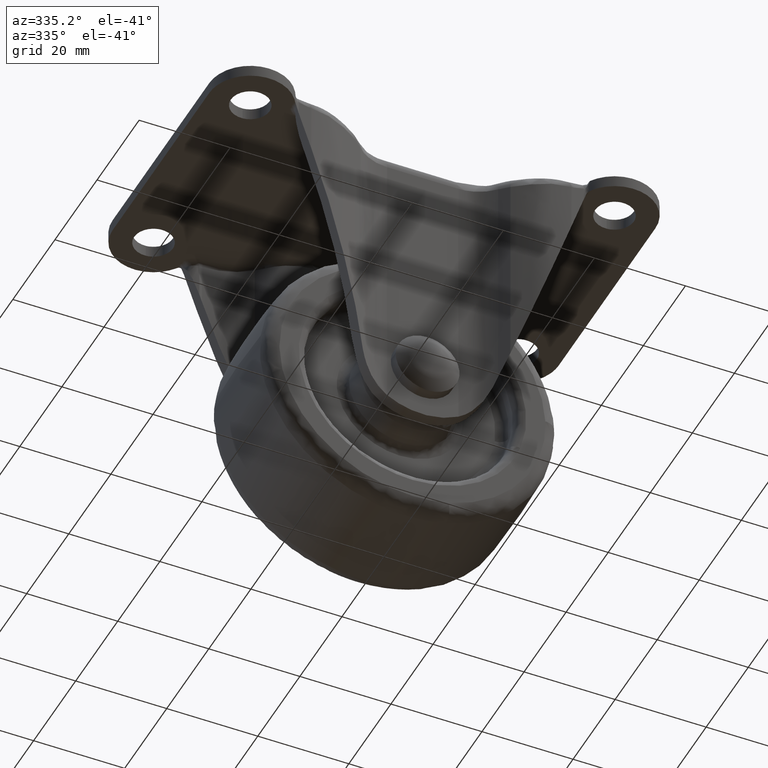
[diagram: clean part render]
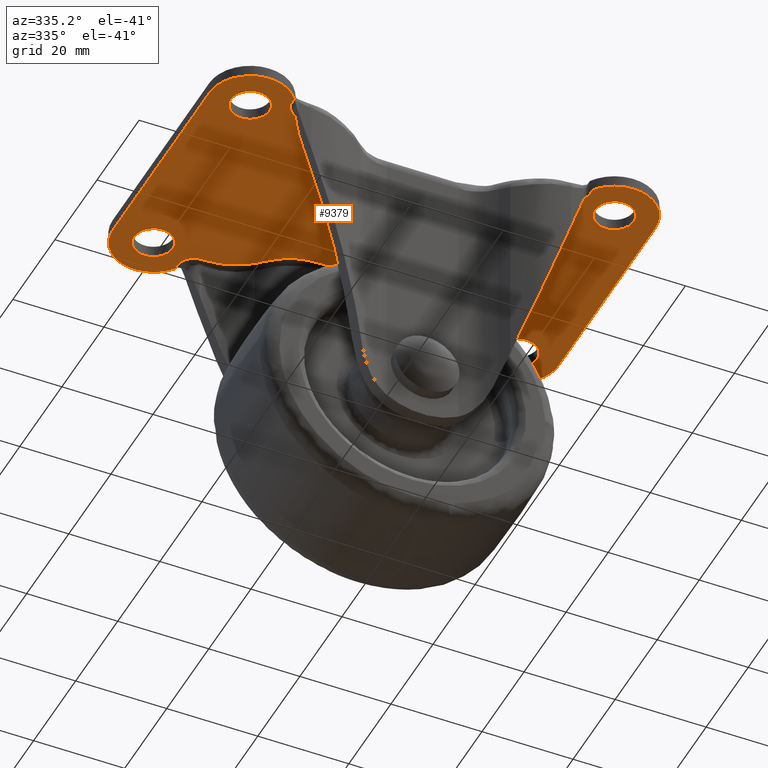
[diagram: same view with one face highlighted and labeled with its STEP entity id]
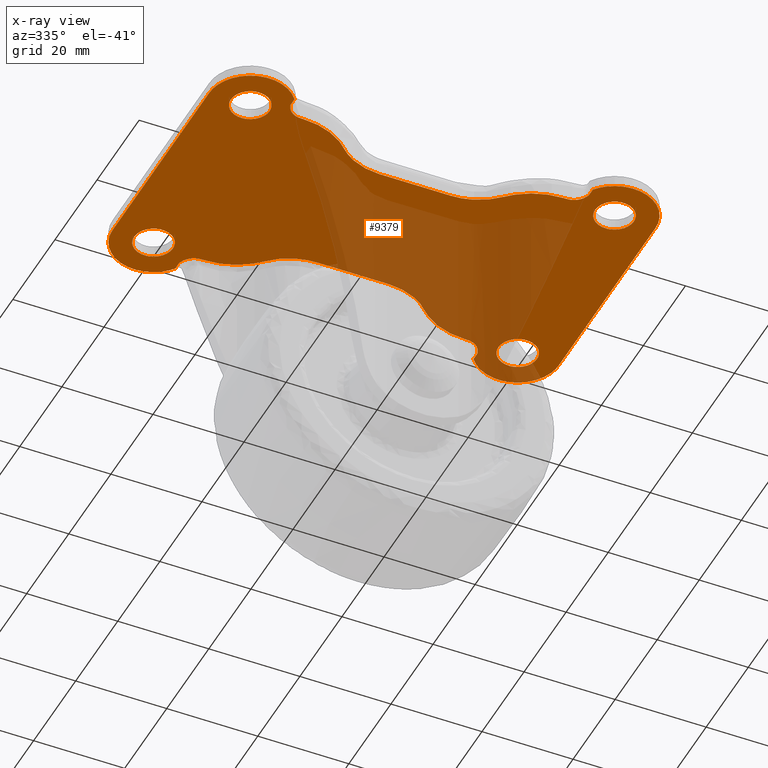
[diagram: x-ray of the same camera — body ghosted, the highlighted face saturated]
A machine part, auxiliary view. The second image highlights one B-rep face of the part: STEP entity #9379.
The next image is the same camera in x-ray: the body ghosted, the highlighted face saturated — about 36% of this face is hidden behind the body in this view.
In plain terms, the highlighted face is a freeform B-spline surface patch.
Its self-contained STEP definition (entity closure, byte-faithful):
#3981=CARTESIAN_POINT('',(-40.501665497512811,18.779709512980759,-2.599999999999935));
#3982=VERTEX_POINT('',#3981);
#3983=CARTESIAN_POINT('',(-35.750019999999992,23.0,-2.599999999999935));
#3984=VERTEX_POINT('',#3983);
#3985=CARTESIAN_POINT('',(-40.501665497512811,18.779709512980759,-2.599999999999935));
#3986=CARTESIAN_POINT('',(-40.251722508744550,18.750000000000004,-2.599999999999935));
#3987=CARTESIAN_POINT('',(-40.000019999999999,18.750000000000000,-2.599999999999935));
#3988=CARTESIAN_POINT('',(-35.750020000000006,18.750000000000004,-2.599999999999935));
#3989=CARTESIAN_POINT('',(-35.750019999999992,23.0,-2.599999999999935));
#3997=(BOUNDED_CURVE()B_SPLINE_CURVE(2,(#3985,#3986,#3987,#3988,#3989),.UNSPECIFIED.,.F.,.U.)B_SPLINE_CURVE_WITH_KNOTS((3,2,3),(0.229562473497897,0.250000000000000,0.500000000000000),.UNSPECIFIED.)CURVE()GEOMETRIC_REPRESENTATION_ITEM()RATIONAL_B_SPLINE_CURVE((0.956026754153100,0.976055948312855,1.0,0.707106781186548,1.0))REPRESENTATION_ITEM(''));
#3998=EDGE_CURVE('',#3982,#3984,#3997,.T.);
#4039=CARTESIAN_POINT('',(-39.740563706735223,27.242072893278159,-2.599999999999935));
#4040=VERTEX_POINT('',#4039);
#4046=CARTESIAN_POINT('',(-35.750019999999992,23.0,-2.599999999999935));
#4047=CARTESIAN_POINT('',(-35.750019999999985,26.998000783892902,-2.599999999999934));
#4048=CARTESIAN_POINT('',(-39.740563706735223,27.242072893278156,-2.599999999999935));
#4056=(BOUNDED_CURVE()B_SPLINE_CURVE(2,(#4046,#4047,#4048),.UNSPECIFIED.,.F.,.U.)B_SPLINE_CURVE_WITH_KNOTS((3,3),(0.500000000000000,0.739332962222312),.UNSPECIFIED.)CURVE()GEOMETRIC_REPRESENTATION_ITEM()RATIONAL_B_SPLINE_CURVE((1.0,0.719603993306195,0.976072041631074))REPRESENTATION_ITEM(''));
#4057=EDGE_CURVE('',#3984,#4040,#4056,.T.);
#4080=CARTESIAN_POINT('',(-44.250019999999999,23.0,-2.599999999999935));
#4081=VERTEX_POINT('',#4080);
#4082=CARTESIAN_POINT('',(-44.250019999999999,23.0,-2.599999999999935));
#4083=CARTESIAN_POINT('',(-44.250020000000013,19.225258265105865,-2.599999999999934));
#4084=CARTESIAN_POINT('',(-40.501665497512811,18.779709512980759,-2.599999999999935));
#4092=(BOUNDED_CURVE()B_SPLINE_CURVE(2,(#4082,#4083,#4084),.UNSPECIFIED.,.F.,.U.)B_SPLINE_CURVE_WITH_KNOTS((3,3),(0.0,0.229562473497897),.UNSPECIFIED.)CURVE()GEOMETRIC_REPRESENTATION_ITEM()RATIONAL_B_SPLINE_CURVE((1.0,0.731050832873692,0.956026754153100))REPRESENTATION_ITEM(''));
#4093=EDGE_CURVE('',#4081,#3982,#4092,.T.);
#4095=CARTESIAN_POINT('',(-39.740563706735216,27.242072893278159,-2.599999999999935));
#4096=CARTESIAN_POINT('',(-39.870170755738684,27.250000000000000,-2.599999999999935));
#4097=CARTESIAN_POINT('',(-40.000019999999999,27.250000000000000,-2.599999999999935));
#4098=CARTESIAN_POINT('',(-44.250020000000013,27.249999999999996,-2.599999999999935));
#4099=CARTESIAN_POINT('',(-44.250019999999999,23.0,-2.599999999999935));
#4107=(BOUNDED_CURVE()B_SPLINE_CURVE(2,(#4095,#4096,#4097,#4098,#4099),.UNSPECIFIED.,.F.,.U.)B_SPLINE_CURVE_WITH_KNOTS((3,2,3),(0.739332962222311,0.750000000000000,1.0),.UNSPECIFIED.)CURVE()GEOMETRIC_REPRESENTATION_ITEM()RATIONAL_B_SPLINE_CURVE((0.976072041631072,0.987502787880352,1.0,0.707106781186548,1.0))REPRESENTATION_ITEM(''));
#4108=EDGE_CURVE('',#4040,#4081,#4107,.T.);
#4167=CARTESIAN_POINT('',(-40.501665497512811,-27.220290487019241,-2.599999999999935));
#4168=VERTEX_POINT('',#4167);
#4169=CARTESIAN_POINT('',(-35.750019999999992,-23.0,-2.599999999999935));
#4170=VERTEX_POINT('',#4169);
#4171=CARTESIAN_POINT('',(-40.501665497512811,-27.220290487019241,-2.599999999999934));
#4172=CARTESIAN_POINT('',(-40.251722508744542,-27.250000000000004,-2.599999999999935));
#4173=CARTESIAN_POINT('',(-40.000019999999999,-27.250000000000000,-2.599999999999935));
#4174=CARTESIAN_POINT('',(-35.750020000000006,-27.249999999999996,-2.599999999999935));
#4175=CARTESIAN_POINT('',(-35.750019999999992,-23.0,-2.599999999999935));
#4183=(BOUNDED_CURVE()B_SPLINE_CURVE(2,(#4171,#4172,#4173,#4174,#4175),.UNSPECIFIED.,.F.,.U.)B_SPLINE_CURVE_WITH_KNOTS((3,2,3),(0.229562473497897,0.250000000000000,0.500000000000000),.UNSPECIFIED.)CURVE()GEOMETRIC_REPRESENTATION_ITEM()RATIONAL_B_SPLINE_CURVE((0.956026754153101,0.976055948312855,1.0,0.707106781186548,1.0))REPRESENTATION_ITEM(''));
#4184=EDGE_CURVE('',#4168,#4170,#4183,.T.);
#4225=CARTESIAN_POINT('',(-39.740563706735223,-18.757927106721841,-2.599999999999935));
#4226=VERTEX_POINT('',#4225);
#4232=CARTESIAN_POINT('',(-35.750019999999992,-23.0,-2.599999999999935));
#4233=CARTESIAN_POINT('',(-35.750019999999985,-19.001999216107095,-2.599999999999934));
#4234=CARTESIAN_POINT('',(-39.740563706735223,-18.757927106721841,-2.599999999999935));
#4242=(BOUNDED_CURVE()B_SPLINE_CURVE(2,(#4232,#4233,#4234),.UNSPECIFIED.,.F.,.U.)B_SPLINE_CURVE_WITH_KNOTS((3,3),(0.500000000000000,0.739332962222312),.UNSPECIFIED.)CURVE()GEOMETRIC_REPRESENTATION_ITEM()RATIONAL_B_SPLINE_CURVE((1.0,0.719603993306195,0.976072041631074))REPRESENTATION_ITEM(''));
#4243=EDGE_CURVE('',#4170,#4226,#4242,.T.);
#4266=CARTESIAN_POINT('',(-44.250019999999999,-23.0,-2.599999999999935));
#4267=VERTEX_POINT('',#4266);
#4268=CARTESIAN_POINT('',(-44.250019999999999,-23.0,-2.599999999999935));
#4269=CARTESIAN_POINT('',(-44.250020000000013,-26.774741734894139,-2.599999999999934));
#4270=CARTESIAN_POINT('',(-40.501665497512811,-27.220290487019238,-2.599999999999935));
#4278=(BOUNDED_CURVE()B_SPLINE_CURVE(2,(#4268,#4269,#4270),.UNSPECIFIED.,.F.,.U.)B_SPLINE_CURVE_WITH_KNOTS((3,3),(0.0,0.229562473497897),.UNSPECIFIED.)CURVE()GEOMETRIC_REPRESENTATION_ITEM()RATIONAL_B_SPLINE_CURVE((1.0,0.731050832873692,0.956026754153100))REPRESENTATION_ITEM(''));
#4279=EDGE_CURVE('',#4267,#4168,#4278,.T.);
#4281=CARTESIAN_POINT('',(-39.740563706735216,-18.757927106721848,-2.599999999999935));
#4282=CARTESIAN_POINT('',(-39.870170755738684,-18.750000000000004,-2.599999999999935));
#4283=CARTESIAN_POINT('',(-40.000019999999999,-18.750000000000000,-2.599999999999935));
#4284=CARTESIAN_POINT('',(-44.250020000000013,-18.750000000000004,-2.599999999999935));
#4285=CARTESIAN_POINT('',(-44.250019999999999,-23.0,-2.599999999999935));
#4293=(BOUNDED_CURVE()B_SPLINE_CURVE(2,(#4281,#4282,#4283,#4284,#4285),.UNSPECIFIED.,.F.,.U.)B_SPLINE_CURVE_WITH_KNOTS((3,2,3),(0.739332962222311,0.750000000000000,1.0),.UNSPECIFIED.)CURVE()GEOMETRIC_REPRESENTATION_ITEM()RATIONAL_B_SPLINE_CURVE((0.976072041631072,0.987502787880352,1.0,0.707106781186548,1.0))REPRESENTATION_ITEM(''));
#4294=EDGE_CURVE('',#4226,#4267,#4293,.T.);
#4353=CARTESIAN_POINT('',(39.498334502487182,18.779709512980759,-2.599999999999935));
#4354=VERTEX_POINT('',#4353);
#4355=CARTESIAN_POINT('',(44.249979999999987,23.0,-2.599999999999935));
#4356=VERTEX_POINT('',#4355);
#4357=CARTESIAN_POINT('',(39.498334502487182,18.779709512980759,-2.599999999999935));
#4358=CARTESIAN_POINT('',(39.748277491255458,18.749999999999996,-2.599999999999935));
#4359=CARTESIAN_POINT('',(39.999980000000001,18.750000000000000,-2.599999999999935));
#4360=CARTESIAN_POINT('',(44.249979999999987,18.750000000000004,-2.599999999999935));
#4361=CARTESIAN_POINT('',(44.249979999999987,23.0,-2.599999999999935));
#4369=(BOUNDED_CURVE()B_SPLINE_CURVE(2,(#4357,#4358,#4359,#4360,#4361),.UNSPECIFIED.,.F.,.U.)B_SPLINE_CURVE_WITH_KNOTS((3,2,3),(0.229562473497897,0.250000000000000,0.500000000000000),.UNSPECIFIED.)CURVE()GEOMETRIC_REPRESENTATION_ITEM()RATIONAL_B_SPLINE_CURVE((0.956026754153100,0.976055948312855,1.0,0.707106781186548,1.0))REPRESENTATION_ITEM(''));
#4370=EDGE_CURVE('',#4354,#4356,#4369,.T.);
#4411=CARTESIAN_POINT('',(40.259436293264777,27.242072893278159,-2.599999999999935));
#4412=VERTEX_POINT('',#4411);
#4418=CARTESIAN_POINT('',(44.249979999999987,23.0,-2.599999999999935));
#4419=CARTESIAN_POINT('',(44.249979999999994,26.998000783892902,-2.599999999999934));
#4420=CARTESIAN_POINT('',(40.259436293264763,27.242072893278156,-2.599999999999935));
#4428=(BOUNDED_CURVE()B_SPLINE_CURVE(2,(#4418,#4419,#4420),.UNSPECIFIED.,.F.,.U.)B_SPLINE_CURVE_WITH_KNOTS((3,3),(0.500000000000000,0.739332962222312),.UNSPECIFIED.)CURVE()GEOMETRIC_REPRESENTATION_ITEM()RATIONAL_B_SPLINE_CURVE((1.0,0.719603993306195,0.976072041631074))REPRESENTATION_ITEM(''));
#4429=EDGE_CURVE('',#4356,#4412,#4428,.T.);
#4452=CARTESIAN_POINT('',(35.749980000000001,23.0,-2.599999999999935));
#4453=VERTEX_POINT('',#4452);
#4454=CARTESIAN_POINT('',(35.749980000000001,23.0,-2.599999999999935));
#4455=CARTESIAN_POINT('',(35.749980000000001,19.225258265105875,-2.599999999999935));
#4456=CARTESIAN_POINT('',(39.498334502487182,18.779709512980759,-2.599999999999935));
#4464=(BOUNDED_CURVE()B_SPLINE_CURVE(2,(#4454,#4455,#4456),.UNSPECIFIED.,.F.,.U.)B_SPLINE_CURVE_WITH_KNOTS((3,3),(0.0,0.229562473497897),.UNSPECIFIED.)CURVE()GEOMETRIC_REPRESENTATION_ITEM()RATIONAL_B_SPLINE_CURVE((1.0,0.731050832873693,0.956026754153100))REPRESENTATION_ITEM(''));
#4465=EDGE_CURVE('',#4453,#4354,#4464,.T.);
#4467=CARTESIAN_POINT('',(40.259436293264777,27.242072893278159,-2.599999999999935));
#4468=CARTESIAN_POINT('',(40.129829244261323,27.250000000000000,-2.599999999999935));
#4469=CARTESIAN_POINT('',(39.999980000000001,27.250000000000000,-2.599999999999935));
#4470=CARTESIAN_POINT('',(35.749979999999994,27.249999999999996,-2.599999999999935));
#4471=CARTESIAN_POINT('',(35.749980000000001,23.0,-2.599999999999935));
#4479=(BOUNDED_CURVE()B_SPLINE_CURVE(2,(#4467,#4468,#4469,#4470,#4471),.UNSPECIFIED.,.F.,.U.)B_SPLINE_CURVE_WITH_KNOTS((3,2,3),(0.739332962222311,0.750000000000000,1.0),.UNSPECIFIED.)CURVE()GEOMETRIC_REPRESENTATION_ITEM()RATIONAL_B_SPLINE_CURVE((0.976072041631072,0.987502787880352,1.0,0.707106781186548,1.0))REPRESENTATION_ITEM(''));
#4480=EDGE_CURVE('',#4412,#4453,#4479,.T.);
#4539=CARTESIAN_POINT('',(39.498334502487182,-27.220290487019241,-2.599999999999935));
#4540=VERTEX_POINT('',#4539);
#4541=CARTESIAN_POINT('',(44.249979999999987,-23.0,-2.599999999999935));
#4542=VERTEX_POINT('',#4541);
#4543=CARTESIAN_POINT('',(39.498334502487182,-27.220290487019245,-2.599999999999935));
#4544=CARTESIAN_POINT('',(39.748277491255458,-27.250000000000000,-2.599999999999935));
#4545=CARTESIAN_POINT('',(39.999980000000001,-27.250000000000000,-2.599999999999935));
#4546=CARTESIAN_POINT('',(44.249979999999987,-27.249999999999996,-2.599999999999935));
#4547=CARTESIAN_POINT('',(44.249979999999987,-23.0,-2.599999999999935));
#4555=(BOUNDED_CURVE()B_SPLINE_CURVE(2,(#4543,#4544,#4545,#4546,#4547),.UNSPECIFIED.,.F.,.U.)B_SPLINE_CURVE_WITH_KNOTS((3,2,3),(0.229562473497897,0.250000000000000,0.500000000000000),.UNSPECIFIED.)CURVE()GEOMETRIC_REPRESENTATION_ITEM()RATIONAL_B_SPLINE_CURVE((0.956026754153100,0.976055948312855,1.0,0.707106781186548,1.0))REPRESENTATION_ITEM(''));
#4556=EDGE_CURVE('',#4540,#4542,#4555,.T.);
#4597=CARTESIAN_POINT('',(40.259436293264777,-18.757927106721841,-2.599999999999935));
#4598=VERTEX_POINT('',#4597);
#4604=CARTESIAN_POINT('',(44.249979999999987,-23.0,-2.599999999999935));
#4605=CARTESIAN_POINT('',(44.249979999999994,-19.001999216107095,-2.599999999999934));
#4606=CARTESIAN_POINT('',(40.259436293264763,-18.757927106721841,-2.599999999999935));
#4614=(BOUNDED_CURVE()B_SPLINE_CURVE(2,(#4604,#4605,#4606),.UNSPECIFIED.,.F.,.U.)B_SPLINE_CURVE_WITH_KNOTS((3,3),(0.500000000000000,0.739332962222312),.UNSPECIFIED.)CURVE()GEOMETRIC_REPRESENTATION_ITEM()RATIONAL_B_SPLINE_CURVE((1.0,0.719603993306195,0.976072041631074))REPRESENTATION_ITEM(''));
#4615=EDGE_CURVE('',#4542,#4598,#4614,.T.);
#4638=CARTESIAN_POINT('',(35.749980000000001,-23.0,-2.599999999999935));
#4639=VERTEX_POINT('',#4638);
#4640=CARTESIAN_POINT('',(35.749980000000001,-23.0,-2.599999999999935));
#4641=CARTESIAN_POINT('',(35.749980000000001,-26.774741734894132,-2.599999999999935));
#4642=CARTESIAN_POINT('',(39.498334502487182,-27.220290487019245,-2.599999999999935));
#4650=(BOUNDED_CURVE()B_SPLINE_CURVE(2,(#4640,#4641,#4642),.UNSPECIFIED.,.F.,.U.)B_SPLINE_CURVE_WITH_KNOTS((3,3),(0.0,0.229562473497897),.UNSPECIFIED.)CURVE()GEOMETRIC_REPRESENTATION_ITEM()RATIONAL_B_SPLINE_CURVE((1.0,0.731050832873693,0.956026754153100))REPRESENTATION_ITEM(''));
#4651=EDGE_CURVE('',#4639,#4540,#4650,.T.);
#4653=CARTESIAN_POINT('',(40.259436293264777,-18.757927106721848,-2.599999999999935));
#4654=CARTESIAN_POINT('',(40.129829244261323,-18.750000000000004,-2.599999999999935));
#4655=CARTESIAN_POINT('',(39.999980000000001,-18.750000000000000,-2.599999999999935));
#4656=CARTESIAN_POINT('',(35.749979999999994,-18.750000000000004,-2.599999999999935));
#4657=CARTESIAN_POINT('',(35.749980000000001,-23.0,-2.599999999999935));
#4665=(BOUNDED_CURVE()B_SPLINE_CURVE(2,(#4653,#4654,#4655,#4656,#4657),.UNSPECIFIED.,.F.,.U.)B_SPLINE_CURVE_WITH_KNOTS((3,2,3),(0.739332962222311,0.750000000000000,1.0),.UNSPECIFIED.)CURVE()GEOMETRIC_REPRESENTATION_ITEM()RATIONAL_B_SPLINE_CURVE((0.976072041631072,0.987502787880352,1.0,0.707106781186548,1.0))REPRESENTATION_ITEM(''));
#4666=EDGE_CURVE('',#4598,#4639,#4665,.T.);
#6241=CARTESIAN_POINT('',(32.764842154643297,-26.413616902741801,-2.599999999999910));
#6242=VERTEX_POINT('',#6241);
#6268=CARTESIAN_POINT('',(32.764842154643297,-28.352829191996001,-2.599999999999935));
#6269=VERTEX_POINT('',#6268);
#6270=CARTESIAN_POINT('',(32.764842154643297,-28.352829191996001,-2.599999999999935));
#6271=CARTESIAN_POINT('',(32.764842154643297,-26.413616902741801,-2.599999999999910));
#6272=QUASI_UNIFORM_CURVE('',1,(#6270,#6271),.UNSPECIFIED.,.F.,.U.);
#6273=EDGE_CURVE('',#6269,#6242,#6272,.T.);
#6306=CARTESIAN_POINT('',(32.542125525004650,-25.894893089746500,-2.599999999999910));
#6307=VERTEX_POINT('',#6306);
#6321=CARTESIAN_POINT('',(32.764842154643297,-26.413616902741801,-2.599999999999910));
#6322=CARTESIAN_POINT('',(32.644327266706533,-26.158186416110876,-2.599999999999910));
#6323=CARTESIAN_POINT('',(32.542125525004650,-25.894893089746500,-2.599999999999910));
#6331=(BOUNDED_CURVE()B_SPLINE_CURVE(2,(#6321,#6322,#6323),.UNSPECIFIED.,.F.,.U.)CURVE()GEOMETRIC_REPRESENTATION_ITEM()QUASI_UNIFORM_CURVE()RATIONAL_B_SPLINE_CURVE((1.0,0.999377389981407,1.0))REPRESENTATION_ITEM(''));
#6332=EDGE_CURVE('',#6242,#6307,#6331,.T.);
#6385=CARTESIAN_POINT('',(29.186091000000101,-23.597594999999998,-2.599999999999910));
#6386=VERTEX_POINT('',#6385);
#6400=CARTESIAN_POINT('',(32.542125525004643,-25.894893089746500,-2.599999999999910));
#6401=CARTESIAN_POINT('',(31.650390178530433,-23.597594999999799,-2.599999999999910));
#6402=CARTESIAN_POINT('',(29.186091000000101,-23.597594999999998,-2.599999999999910));
#6410=(BOUNDED_CURVE()B_SPLINE_CURVE(2,(#6400,#6401,#6402),.UNSPECIFIED.,.F.,.U.)CURVE()GEOMETRIC_REPRESENTATION_ITEM()QUASI_UNIFORM_CURVE()RATIONAL_B_SPLINE_CURVE((1.0,0.825185325165513,1.0))REPRESENTATION_ITEM(''));
#6411=EDGE_CURVE('',#6307,#6386,#6410,.T.);
#6446=CARTESIAN_POINT('',(28.582093000000000,-23.597594999999998,-2.599999999999910));
#6447=VERTEX_POINT('',#6446);
#6461=CARTESIAN_POINT('',(29.186091000000101,-23.597594999999998,-2.599999999999910));
#6462=CARTESIAN_POINT('',(28.582093000000000,-23.597594999999998,-2.599999999999910));
#6463=QUASI_UNIFORM_CURVE('',1,(#6461,#6462),.UNSPECIFIED.,.F.,.U.);
#6464=EDGE_CURVE('',#6386,#6447,#6463,.T.);
#6494=CARTESIAN_POINT('',(19.203246406812301,-20.411392838200150,-2.599999999999910));
#6495=VERTEX_POINT('',#6494);
#6509=CARTESIAN_POINT('',(28.582093000000000,-23.597594999999998,-2.599999999999910));
#6510=CARTESIAN_POINT('',(23.351457939518696,-23.597594999999995,-2.599999999999910));
#6511=CARTESIAN_POINT('',(19.203246406812269,-20.411392838200200,-2.599999999999910));
#6519=(BOUNDED_CURVE()B_SPLINE_CURVE(2,(#6509,#6510,#6511),.UNSPECIFIED.,.F.,.U.)CURVE()GEOMETRIC_REPRESENTATION_ITEM()QUASI_UNIFORM_CURVE()RATIONAL_B_SPLINE_CURVE((1.0,0.946852887793445,1.0))REPRESENTATION_ITEM(''));
#6520=EDGE_CURVE('',#6447,#6495,#6519,.T.);
#6558=CARTESIAN_POINT('',(17.738251175182800,-19.085350348454149,-2.599999999999910));
#6559=VERTEX_POINT('',#6558);
#6573=CARTESIAN_POINT('',(19.203246406812280,-20.411392838200189,-2.599999999999910));
#6574=CARTESIAN_POINT('',(18.417143202679185,-19.807594379838434,-2.599999999999910));
#6575=CARTESIAN_POINT('',(17.738251175182789,-19.085350348454160,-2.599999999999910));
#6583=(BOUNDED_CURVE()B_SPLINE_CURVE(2,(#6573,#6574,#6575),.UNSPECIFIED.,.F.,.U.)CURVE()GEOMETRIC_REPRESENTATION_ITEM()QUASI_UNIFORM_CURVE()RATIONAL_B_SPLINE_CURVE((1.0,0.996747536518164,1.0))REPRESENTATION_ITEM(''));
#6584=EDGE_CURVE('',#6495,#6559,#6583,.T.);
#6622=CARTESIAN_POINT('',(7.828796000000200,-14.800000000000001,-2.599999999999910));
#6623=VERTEX_POINT('',#6622);
#6637=CARTESIAN_POINT('',(17.738251175182789,-19.085350348454160,-2.599999999999910));
#6638=CARTESIAN_POINT('',(13.710124863057448,-14.800000000000001,-2.599999999999910));
#6639=CARTESIAN_POINT('',(7.828796000000200,-14.800000000000001,-2.599999999999910));
#6647=(BOUNDED_CURVE()B_SPLINE_CURVE(2,(#6637,#6638,#6639),.UNSPECIFIED.,.F.,.U.)CURVE()GEOMETRIC_REPRESENTATION_ITEM()QUASI_UNIFORM_CURVE()RATIONAL_B_SPLINE_CURVE((1.0,0.917850943691972,1.0))REPRESENTATION_ITEM(''));
#6648=EDGE_CURVE('',#6559,#6623,#6647,.T.);
#6683=CARTESIAN_POINT('',(-7.828835999999799,-14.800000000000001,-2.599999999999910));
#6684=VERTEX_POINT('',#6683);
#6698=CARTESIAN_POINT('',(7.828796000000200,-14.800000000000001,-2.599999999999910));
#6699=CARTESIAN_POINT('',(-7.828835999999799,-14.800000000000001,-2.599999999999910));
#6700=QUASI_UNIFORM_CURVE('',1,(#6698,#6699),.UNSPECIFIED.,.F.,.U.);
#6701=EDGE_CURVE('',#6623,#6684,#6700,.T.);
#6731=CARTESIAN_POINT('',(-17.738291175182599,-19.085350348454149,-2.599999999999910));
#6732=VERTEX_POINT('',#6731);
#6746=CARTESIAN_POINT('',(-7.828835999999799,-14.800000000000001,-2.599999999999910));
#6747=CARTESIAN_POINT('',(-13.710164863057253,-14.800000000000011,-2.599999999999910));
#6748=CARTESIAN_POINT('',(-17.738291175182589,-19.085350348454160,-2.599999999999910));
#6756=(BOUNDED_CURVE()B_SPLINE_CURVE(2,(#6746,#6747,#6748),.UNSPECIFIED.,.F.,.U.)CURVE()GEOMETRIC_REPRESENTATION_ITEM()QUASI_UNIFORM_CURVE()RATIONAL_B_SPLINE_CURVE((1.0,0.917850943691972,1.0))REPRESENTATION_ITEM(''));
#6757=EDGE_CURVE('',#6684,#6732,#6756,.T.);
#6795=CARTESIAN_POINT('',(-19.203286406812051,-20.411392838200150,-2.599999999999910));
#6796=VERTEX_POINT('',#6795);
#6812=CARTESIAN_POINT('',(-17.738291175182589,-19.085350348454160,-2.599999999999910));
#6813=CARTESIAN_POINT('',(-18.417183202678967,-19.807594379838406,-2.599999999999910));
#6814=CARTESIAN_POINT('',(-19.203286406812051,-20.411392838200161,-2.599999999999910));
#6822=(BOUNDED_CURVE()B_SPLINE_CURVE(2,(#6812,#6813,#6814),.UNSPECIFIED.,.F.,.U.)CURVE()GEOMETRIC_REPRESENTATION_ITEM()QUASI_UNIFORM_CURVE()RATIONAL_B_SPLINE_CURVE((1.0,0.996747536518165,1.0))REPRESENTATION_ITEM(''));
#6823=EDGE_CURVE('',#6732,#6796,#6822,.T.);
#6861=CARTESIAN_POINT('',(-28.582132999999800,-23.597594999999998,-2.599999999999910));
#6862=VERTEX_POINT('',#6861);
#6876=CARTESIAN_POINT('',(-19.203286406812030,-20.411392838200172,-2.599999999999910));
#6877=CARTESIAN_POINT('',(-23.351497939518463,-23.597594999999998,-2.599999999999910));
#6878=CARTESIAN_POINT('',(-28.582132999999800,-23.597594999999998,-2.599999999999910));
#6886=(BOUNDED_CURVE()B_SPLINE_CURVE(2,(#6876,#6877,#6878),.UNSPECIFIED.,.F.,.U.)CURVE()GEOMETRIC_REPRESENTATION_ITEM()QUASI_UNIFORM_CURVE()RATIONAL_B_SPLINE_CURVE((1.0,0.946852887793445,1.0))REPRESENTATION_ITEM(''));
#6887=EDGE_CURVE('',#6796,#6862,#6886,.T.);
#6922=CARTESIAN_POINT('',(-29.186130999999900,-23.597594999999998,-2.599999999999910));
#6923=VERTEX_POINT('',#6922);
#6937=CARTESIAN_POINT('',(-28.582132999999800,-23.597594999999998,-2.599999999999910));
#6938=CARTESIAN_POINT('',(-29.186130999999900,-23.597594999999998,-2.599999999999910));
#6939=QUASI_UNIFORM_CURVE('',1,(#6937,#6938),.UNSPECIFIED.,.F.,.U.);
#6940=EDGE_CURVE('',#6862,#6923,#6939,.T.);
#6970=CARTESIAN_POINT('',(-32.542165541090753,-25.894893131188152,-2.599999999999910));
#6971=VERTEX_POINT('',#6970);
#6987=CARTESIAN_POINT('',(-29.186130999999900,-23.597594999999998,-2.599999999999910));
#6988=CARTESIAN_POINT('',(-31.650430211172495,-23.597594999999803,-2.599999999999911));
#6989=CARTESIAN_POINT('',(-32.542165541090718,-25.894893131188159,-2.599999999999910));
#6997=(BOUNDED_CURVE()B_SPLINE_CURVE(2,(#6987,#6988,#6989),.UNSPECIFIED.,.F.,.U.)CURVE()GEOMETRIC_REPRESENTATION_ITEM()QUASI_UNIFORM_CURVE()RATIONAL_B_SPLINE_CURVE((1.0,0.825185321677941,1.0))REPRESENTATION_ITEM(''));
#6998=EDGE_CURVE('',#6923,#6971,#6997,.T.);
#7036=CARTESIAN_POINT('',(-32.764842154642949,-26.413532121726249,-2.599999999999910));
#7037=VERTEX_POINT('',#7036);
#7063=CARTESIAN_POINT('',(-32.542165541090753,-25.894893131188152,-2.599999999999910));
#7064=CARTESIAN_POINT('',(-32.644350294000105,-26.158142686507073,-2.599999999999910));
#7065=CARTESIAN_POINT('',(-32.764842154642949,-26.413532121726249,-2.599999999999910));
#7073=(BOUNDED_CURVE()B_SPLINE_CURVE(2,(#7063,#7064,#7065),.UNSPECIFIED.,.F.,.U.)CURVE()GEOMETRIC_REPRESENTATION_ITEM()QUASI_UNIFORM_CURVE()RATIONAL_B_SPLINE_CURVE((1.0,0.999377596779197,1.0))REPRESENTATION_ITEM(''));
#7074=EDGE_CURVE('',#6971,#7037,#7073,.T.);
#7122=CARTESIAN_POINT('',(-32.764842154642949,-28.352775125676100,-2.599999999999935));
#7123=VERTEX_POINT('',#7122);
#7135=CARTESIAN_POINT('',(-32.764842154642949,-26.413532121726249,-2.599999999999910));
#7136=CARTESIAN_POINT('',(-32.764842154642949,-28.352775125676100,-2.599999999999935));
#7137=QUASI_UNIFORM_CURVE('',1,(#7135,#7136),.UNSPECIFIED.,.F.,.U.);
#7138=EDGE_CURVE('',#7037,#7123,#7137,.T.);
#7186=CARTESIAN_POINT('',(-32.764842154642949,26.413532121726249,-2.599999999999910));
#7187=VERTEX_POINT('',#7186);
#7213=CARTESIAN_POINT('',(-32.764842154642949,28.352775125676100,-2.599999999999935));
#7214=VERTEX_POINT('',#7213);
#7215=CARTESIAN_POINT('',(-32.764842154642949,28.352775125676100,-2.599999999999935));
#7216=CARTESIAN_POINT('',(-32.764842154642949,26.413532121726249,-2.599999999999910));
#7217=QUASI_UNIFORM_CURVE('',1,(#7215,#7216),.UNSPECIFIED.,.F.,.U.);
#7218=EDGE_CURVE('',#7214,#7187,#7217,.T.);
#7279=CARTESIAN_POINT('',(-32.542165525004449,25.894893089746500,-2.599999999999910));
#7280=VERTEX_POINT('',#7279);
#7296=CARTESIAN_POINT('',(-32.764842154642949,26.413532121726249,-2.599999999999910));
#7297=CARTESIAN_POINT('',(-32.644350284504156,26.158142666379888,-2.599999999999910));
#7298=CARTESIAN_POINT('',(-32.542165525004449,25.894893089746500,-2.599999999999910));
#7306=(BOUNDED_CURVE()B_SPLINE_CURVE(2,(#7296,#7297,#7298),.UNSPECIFIED.,.F.,.U.)CURVE()GEOMETRIC_REPRESENTATION_ITEM()QUASI_UNIFORM_CURVE()RATIONAL_B_SPLINE_CURVE((1.0,0.999377596681186,1.0))REPRESENTATION_ITEM(''));
#7307=EDGE_CURVE('',#7187,#7280,#7306,.T.);
#7360=CARTESIAN_POINT('',(-29.186130999999900,23.597594999999998,-2.599999999999910));
#7361=VERTEX_POINT('',#7360);
#7375=CARTESIAN_POINT('',(-32.542165525004442,25.894893089746500,-2.599999999999910));
#7376=CARTESIAN_POINT('',(-31.650430178530240,23.597594999999806,-2.599999999999910));
#7377=CARTESIAN_POINT('',(-29.186130999999900,23.597594999999998,-2.599999999999910));
#7385=(BOUNDED_CURVE()B_SPLINE_CURVE(2,(#7375,#7376,#7377),.UNSPECIFIED.,.F.,.U.)CURVE()GEOMETRIC_REPRESENTATION_ITEM()QUASI_UNIFORM_CURVE()RATIONAL_B_SPLINE_CURVE((1.0,0.825185325165513,1.0))REPRESENTATION_ITEM(''));
#7386=EDGE_CURVE('',#7280,#7361,#7385,.T.);
#7421=CARTESIAN_POINT('',(-28.582132999999800,23.597594999999998,-2.599999999999910));
#7422=VERTEX_POINT('',#7421);
#7436=CARTESIAN_POINT('',(-29.186130999999900,23.597594999999998,-2.599999999999910));
#7437=CARTESIAN_POINT('',(-28.582132999999800,23.597594999999998,-2.599999999999910));
#7438=QUASI_UNIFORM_CURVE('',1,(#7436,#7437),.UNSPECIFIED.,.F.,.U.);
#7439=EDGE_CURVE('',#7361,#7422,#7438,.T.);
#7469=CARTESIAN_POINT('',(-19.203286406812051,20.411392838200150,-2.599999999999910));
#7470=VERTEX_POINT('',#7469);
#7484=CARTESIAN_POINT('',(-28.582132999999800,23.597594999999998,-2.599999999999910));
#7485=CARTESIAN_POINT('',(-23.351497939518463,23.597594999999998,-2.599999999999910));
#7486=CARTESIAN_POINT('',(-19.203286406812030,20.411392838200172,-2.599999999999910));
#7494=(BOUNDED_CURVE()B_SPLINE_CURVE(2,(#7484,#7485,#7486),.UNSPECIFIED.,.F.,.U.)CURVE()GEOMETRIC_REPRESENTATION_ITEM()QUASI_UNIFORM_CURVE()RATIONAL_B_SPLINE_CURVE((1.0,0.946852887793445,1.0))REPRESENTATION_ITEM(''));
#7495=EDGE_CURVE('',#7422,#7470,#7494,.T.);
#7533=CARTESIAN_POINT('',(-17.738291175182599,19.085350348454149,-2.599999999999910));
#7534=VERTEX_POINT('',#7533);
#7548=CARTESIAN_POINT('',(-19.203286406812051,20.411392838200161,-2.599999999999910));
#7549=CARTESIAN_POINT('',(-18.417183202678981,19.807594379838420,-2.599999999999910));
#7550=CARTESIAN_POINT('',(-17.738291175182589,19.085350348454170,-2.599999999999910));
#7558=(BOUNDED_CURVE()B_SPLINE_CURVE(2,(#7548,#7549,#7550),.UNSPECIFIED.,.F.,.U.)CURVE()GEOMETRIC_REPRESENTATION_ITEM()QUASI_UNIFORM_CURVE()RATIONAL_B_SPLINE_CURVE((1.0,0.996747536518165,1.0))REPRESENTATION_ITEM(''));
#7559=EDGE_CURVE('',#7470,#7534,#7558,.T.);
#7597=CARTESIAN_POINT('',(-7.828835999999799,14.800000000000001,-2.599999999999910));
#7598=VERTEX_POINT('',#7597);
#7612=CARTESIAN_POINT('',(-17.738291175182589,19.085350348454160,-2.599999999999910));
#7613=CARTESIAN_POINT('',(-13.710164863057251,14.800000000000010,-2.599999999999910));
#7614=CARTESIAN_POINT('',(-7.828835999999799,14.800000000000001,-2.599999999999910));
#7622=(BOUNDED_CURVE()B_SPLINE_CURVE(2,(#7612,#7613,#7614),.UNSPECIFIED.,.F.,.U.)CURVE()GEOMETRIC_REPRESENTATION_ITEM()QUASI_UNIFORM_CURVE()RATIONAL_B_SPLINE_CURVE((1.0,0.917850943691972,1.0))REPRESENTATION_ITEM(''));
#7623=EDGE_CURVE('',#7534,#7598,#7622,.T.);
#7658=CARTESIAN_POINT('',(7.828796000000001,14.800000000000001,-2.599999999999910));
#7659=VERTEX_POINT('',#7658);
#7673=CARTESIAN_POINT('',(-7.828835999999799,14.800000000000001,-2.599999999999910));
#7674=CARTESIAN_POINT('',(7.828796000000001,14.800000000000001,-2.599999999999910));
#7675=QUASI_UNIFORM_CURVE('',1,(#7673,#7674),.UNSPECIFIED.,.F.,.U.);
#7676=EDGE_CURVE('',#7598,#7659,#7675,.T.);
#7706=CARTESIAN_POINT('',(17.738251175182800,19.085350348454149,-2.599999999999910));
#7707=VERTEX_POINT('',#7706);
#7721=CARTESIAN_POINT('',(7.828796000000001,14.800000000000001,-2.599999999999910));
#7722=CARTESIAN_POINT('',(13.710124863057446,14.800000000000011,-2.599999999999910));
#7723=CARTESIAN_POINT('',(17.738251175182789,19.085350348454160,-2.599999999999910));
#7731=(BOUNDED_CURVE()B_SPLINE_CURVE(2,(#7721,#7722,#7723),.UNSPECIFIED.,.F.,.U.)CURVE()GEOMETRIC_REPRESENTATION_ITEM()QUASI_UNIFORM_CURVE()RATIONAL_B_SPLINE_CURVE((1.0,0.917850943691972,1.0))REPRESENTATION_ITEM(''));
#7732=EDGE_CURVE('',#7659,#7707,#7731,.T.);
#7770=CARTESIAN_POINT('',(19.203246406812251,20.411392838200150,-2.599999999999910));
#7771=VERTEX_POINT('',#7770);
#7785=CARTESIAN_POINT('',(17.738251175182789,19.085350348454160,-2.599999999999910));
#7786=CARTESIAN_POINT('',(18.417143202679178,19.807594379838424,-2.599999999999910));
#7787=CARTESIAN_POINT('',(19.203246406812241,20.411392838200161,-2.599999999999910));
#7795=(BOUNDED_CURVE()B_SPLINE_CURVE(2,(#7785,#7786,#7787),.UNSPECIFIED.,.F.,.U.)CURVE()GEOMETRIC_REPRESENTATION_ITEM()QUASI_UNIFORM_CURVE()RATIONAL_B_SPLINE_CURVE((1.0,0.996747536518165,1.0))REPRESENTATION_ITEM(''));
#7796=EDGE_CURVE('',#7707,#7771,#7795,.T.);
#7834=CARTESIAN_POINT('',(28.582093000000000,23.597594999999998,-2.599999999999910));
#7835=VERTEX_POINT('',#7834);
#7849=CARTESIAN_POINT('',(19.203246406812220,20.411392838200172,-2.599999999999910));
#7850=CARTESIAN_POINT('',(23.351457939518657,23.597595000000002,-2.599999999999909));
#7851=CARTESIAN_POINT('',(28.582093000000000,23.597594999999998,-2.599999999999910));
#7859=(BOUNDED_CURVE()B_SPLINE_CURVE(2,(#7849,#7850,#7851),.UNSPECIFIED.,.F.,.U.)CURVE()GEOMETRIC_REPRESENTATION_ITEM()QUASI_UNIFORM_CURVE()RATIONAL_B_SPLINE_CURVE((1.0,0.946852887793445,1.0))REPRESENTATION_ITEM(''));
#7860=EDGE_CURVE('',#7771,#7835,#7859,.T.);
#7895=CARTESIAN_POINT('',(29.186091000000101,23.597594999999799,-2.599999999999910));
#7896=VERTEX_POINT('',#7895);
#7910=CARTESIAN_POINT('',(28.582093000000000,23.597594999999998,-2.599999999999910));
#7911=CARTESIAN_POINT('',(29.186091000000101,23.597594999999799,-2.599999999999910));
#7912=QUASI_UNIFORM_CURVE('',1,(#7910,#7911),.UNSPECIFIED.,.F.,.U.);
#7913=EDGE_CURVE('',#7835,#7896,#7912,.T.);
#7943=CARTESIAN_POINT('',(32.542125511418902,25.894893163339201,-2.599999999999910));
#7944=VERTEX_POINT('',#7943);
#7958=CARTESIAN_POINT('',(29.186091000000101,23.597594999999799,-2.599999999999910));
#7959=CARTESIAN_POINT('',(31.650390225296793,23.597594999999796,-2.599999999999910));
#7960=CARTESIAN_POINT('',(32.542125511418902,25.894893163339201,-2.599999999999910));
#7968=(BOUNDED_CURVE()B_SPLINE_CURVE(2,(#7958,#7959,#7960),.UNSPECIFIED.,.F.,.U.)CURVE()GEOMETRIC_REPRESENTATION_ITEM()QUASI_UNIFORM_CURVE()RATIONAL_B_SPLINE_CURVE((1.0,0.825185320168892,1.0))REPRESENTATION_ITEM(''));
#7969=EDGE_CURVE('',#7896,#7944,#7968,.T.);
#8007=CARTESIAN_POINT('',(32.764842154643297,26.413616902741801,-2.599999999999910));
#8008=VERTEX_POINT('',#8007);
#8034=CARTESIAN_POINT('',(32.542125511418902,25.894893163339201,-2.599999999999910));
#8035=CARTESIAN_POINT('',(32.644327280311650,26.158186444946818,-2.599999999999910));
#8036=CARTESIAN_POINT('',(32.764842154643297,26.413616902741801,-2.599999999999910));
#8044=(BOUNDED_CURVE()B_SPLINE_CURVE(2,(#8034,#8035,#8036),.UNSPECIFIED.,.F.,.U.)CURVE()GEOMETRIC_REPRESENTATION_ITEM()QUASI_UNIFORM_CURVE()RATIONAL_B_SPLINE_CURVE((1.0,0.999377390121851,1.0))REPRESENTATION_ITEM(''));
#8045=EDGE_CURVE('',#7944,#8008,#8044,.T.);
#8093=CARTESIAN_POINT('',(32.764842154643297,28.352829191996001,-2.599999999999935));
#8094=VERTEX_POINT('',#8093);
#8106=CARTESIAN_POINT('',(32.764842154643297,26.413616902741801,-2.599999999999910));
#8107=CARTESIAN_POINT('',(32.764842154643297,28.352829191996001,-2.599999999999935));
#8108=QUASI_UNIFORM_CURVE('',1,(#8106,#8107),.UNSPECIFIED.,.F.,.U.);
#8109=EDGE_CURVE('',#8008,#8094,#8108,.T.);
#9240=CARTESIAN_POINT('',(-53.895118890103113,-35.195616613958833,-2.599999999999910));
#9241=CARTESIAN_POINT('',(53.895082394856217,-35.195616613958833,-2.599999999999910));
#9242=CARTESIAN_POINT('',(-53.895118890103113,35.195618398860290,-2.599999999999910));
#9243=CARTESIAN_POINT('',(53.895082394856217,35.195618398860290,-2.599999999999910));
#9244=B_SPLINE_SURFACE_WITH_KNOTS('',1,1,((#9240,#9242),(#9241,#9243)),.UNSPECIFIED.,.F.,.F.,.U.,(2,2),(2,2),(0.0,107.790201284959290),(0.0,70.391235012819124),.UNSPECIFIED.);
#9245=CARTESIAN_POINT('',(-49.000019999999999,23.0,-2.599999999999935));
#9246=VERTEX_POINT('',#9245);
#9247=CARTESIAN_POINT('',(-49.000019999999999,23.0,-2.599999999999935));
#9248=CARTESIAN_POINT('',(-49.000019999999999,29.509229023852267,-2.599999999999935));
#9249=CARTESIAN_POINT('',(-42.818122144332897,31.547414831638061,-2.599999999999935));
#9250=CARTESIAN_POINT('',(-36.636224288665801,33.585600639423838,-2.599999999999935));
#9251=CARTESIAN_POINT('',(-32.764842154643048,28.352775125676018,-2.599999999999935));
#9259=(BOUNDED_CURVE()B_SPLINE_CURVE(2,(#9247,#9248,#9249,#9250,#9251),.UNSPECIFIED.,.F.,.U.)B_SPLINE_CURVE_WITH_KNOTS((3,2,3),(0.0,0.500000000000000,1.0),.UNSPECIFIED.)CURVE()GEOMETRIC_REPRESENTATION_ITEM()RATIONAL_B_SPLINE_CURVE((1.0,0.810284660005801,1.0,0.810284660005801,1.0))REPRESENTATION_ITEM(''));
#9260=EDGE_CURVE('',#9246,#7214,#9259,.T.);
#9261=ORIENTED_EDGE('',*,*,#9260,.T.);
#9262=ORIENTED_EDGE('',*,*,#7218,.T.);
#9263=ORIENTED_EDGE('',*,*,#7307,.T.);
#9264=ORIENTED_EDGE('',*,*,#7386,.T.);
#9265=ORIENTED_EDGE('',*,*,#7439,.T.);
#9266=ORIENTED_EDGE('',*,*,#7495,.T.);
#9267=ORIENTED_EDGE('',*,*,#7559,.T.);
#9268=ORIENTED_EDGE('',*,*,#7623,.T.);
#9269=ORIENTED_EDGE('',*,*,#7676,.T.);
#9270=ORIENTED_EDGE('',*,*,#7732,.T.);
#9271=ORIENTED_EDGE('',*,*,#7796,.T.);
#9272=ORIENTED_EDGE('',*,*,#7860,.T.);
#9273=ORIENTED_EDGE('',*,*,#7913,.T.);
#9274=ORIENTED_EDGE('',*,*,#7969,.T.);
#9275=ORIENTED_EDGE('',*,*,#8045,.T.);
#9276=ORIENTED_EDGE('',*,*,#8109,.T.);
#9277=CARTESIAN_POINT('',(48.999980000000001,23.0,-2.599999999999935));
#9278=VERTEX_POINT('',#9277);
#9279=CARTESIAN_POINT('',(32.764842154643297,28.352829191996001,-2.599999999999935));
#9280=CARTESIAN_POINT('',(36.636248161077610,33.585605188991877,-2.599999999999935));
#9281=CARTESIAN_POINT('',(42.818114080538813,31.547404302132058,-2.599999999999935));
#9282=CARTESIAN_POINT('',(48.999980000000001,29.509203415272243,-2.599999999999935));
#9283=CARTESIAN_POINT('',(48.999980000000001,23.0,-2.599999999999935));
#9291=(BOUNDED_CURVE()B_SPLINE_CURVE(2,(#9279,#9280,#9281,#9282,#9283),.UNSPECIFIED.,.F.,.U.)B_SPLINE_CURVE_WITH_KNOTS((3,2,3),(0.0,0.500000000000000,1.0),.UNSPECIFIED.)CURVE()GEOMETRIC_REPRESENTATION_ITEM()RATIONAL_B_SPLINE_CURVE((1.0,0.810285754826270,1.0,0.810285754826270,1.0))REPRESENTATION_ITEM(''));
#9292=EDGE_CURVE('',#8094,#9278,#9291,.T.);
#9293=ORIENTED_EDGE('',*,*,#9292,.T.);
#9294=CARTESIAN_POINT('',(48.999980000000001,-23.0,-2.599999999999935));
#9295=VERTEX_POINT('',#9294);
#9296=CARTESIAN_POINT('',(48.999980000000001,-23.0,-2.599999999999935));
#9297=CARTESIAN_POINT('',(48.999980000000001,23.0,-2.599999999999935));
#9298=QUASI_UNIFORM_CURVE('',1,(#9296,#9297),.UNSPECIFIED.,.F.,.U.);
#9299=EDGE_CURVE('',#9295,#9278,#9298,.T.);
#9300=ORIENTED_EDGE('',*,*,#9299,.F.);
#9301=CARTESIAN_POINT('',(48.999980000000001,-23.0,-2.599999999999935));
#9302=CARTESIAN_POINT('',(48.999980000000008,-29.509203415272246,-2.599999999999935));
#9303=CARTESIAN_POINT('',(42.818114080538813,-31.547404302132058,-2.599999999999935));
#9304=CARTESIAN_POINT('',(36.636248161077610,-33.585605188991885,-2.599999999999935));
#9305=CARTESIAN_POINT('',(32.764842154643297,-28.352829191996001,-2.599999999999935));
#9313=(BOUNDED_CURVE()B_SPLINE_CURVE(2,(#9301,#9302,#9303,#9304,#9305),.UNSPECIFIED.,.F.,.U.)B_SPLINE_CURVE_WITH_KNOTS((3,2,3),(0.0,0.500000000000000,1.0),.UNSPECIFIED.)CURVE()GEOMETRIC_REPRESENTATION_ITEM()RATIONAL_B_SPLINE_CURVE((1.0,0.810285754826270,1.0,0.810285754826270,1.0))REPRESENTATION_ITEM(''));
#9314=EDGE_CURVE('',#9295,#6269,#9313,.T.);
#9315=ORIENTED_EDGE('',*,*,#9314,.T.);
#9316=ORIENTED_EDGE('',*,*,#6273,.T.);
#9317=ORIENTED_EDGE('',*,*,#6332,.T.);
#9318=ORIENTED_EDGE('',*,*,#6411,.T.);
#9319=ORIENTED_EDGE('',*,*,#6464,.T.);
#9320=ORIENTED_EDGE('',*,*,#6520,.T.);
#9321=ORIENTED_EDGE('',*,*,#6584,.T.);
#9322=ORIENTED_EDGE('',*,*,#6648,.T.);
#9323=ORIENTED_EDGE('',*,*,#6701,.T.);
#9324=ORIENTED_EDGE('',*,*,#6757,.T.);
#9325=ORIENTED_EDGE('',*,*,#6823,.T.);
#9326=ORIENTED_EDGE('',*,*,#6887,.T.);
#9327=ORIENTED_EDGE('',*,*,#6940,.T.);
#9328=ORIENTED_EDGE('',*,*,#6998,.T.);
#9329=ORIENTED_EDGE('',*,*,#7074,.T.);
#9330=ORIENTED_EDGE('',*,*,#7138,.T.);
#9331=CARTESIAN_POINT('',(-49.000019999999999,-23.0,-2.599999999999935));
#9332=VERTEX_POINT('',#9331);
#9333=CARTESIAN_POINT('',(-32.764842154643048,-28.352775125676018,-2.599999999999935));
#9334=CARTESIAN_POINT('',(-36.636224288665801,-33.585600639423838,-2.599999999999935));
#9335=CARTESIAN_POINT('',(-42.818122144332897,-31.547414831638061,-2.599999999999935));
#9336=CARTESIAN_POINT('',(-49.000019999999999,-29.509229023852267,-2.599999999999935));
#9337=CARTESIAN_POINT('',(-49.000019999999999,-23.0,-2.599999999999935));
#9345=(BOUNDED_CURVE()B_SPLINE_CURVE(2,(#9333,#9334,#9335,#9336,#9337),.UNSPECIFIED.,.F.,.U.)B_SPLINE_CURVE_WITH_KNOTS((3,2,3),(0.0,0.500000000000000,1.0),.UNSPECIFIED.)CURVE()GEOMETRIC_REPRESENTATION_ITEM()RATIONAL_B_SPLINE_CURVE((1.0,0.810284660005801,1.0,0.810284660005801,1.0))REPRESENTATION_ITEM(''));
#9346=EDGE_CURVE('',#7123,#9332,#9345,.T.);
#9347=ORIENTED_EDGE('',*,*,#9346,.T.);
#9348=CARTESIAN_POINT('',(-49.000019999999999,23.0,-2.599999999999935));
#9349=CARTESIAN_POINT('',(-49.000019999999999,-23.0,-2.599999999999935));
#9350=QUASI_UNIFORM_CURVE('',1,(#9348,#9349),.UNSPECIFIED.,.F.,.U.);
#9351=EDGE_CURVE('',#9246,#9332,#9350,.T.);
#9352=ORIENTED_EDGE('',*,*,#9351,.F.);
#9353=EDGE_LOOP('',(#9261,#9262,#9263,#9264,#9265,#9266,#9267,#9268,#9269,#9270,#9271,#9272,#9273,#9274,#9275,#9276,#9293,#9300,#9315,#9316,#9317,#9318,#9319,#9320,#9321,#9322,#9323,#9324,#9325,#9326,#9327,#9328,#9329,#9330,#9347,#9352));
#9354=FACE_OUTER_BOUND('',#9353,.T.);
#9355=ORIENTED_EDGE('',*,*,#4615,.T.);
#9356=ORIENTED_EDGE('',*,*,#4666,.T.);
#9357=ORIENTED_EDGE('',*,*,#4651,.T.);
#9358=ORIENTED_EDGE('',*,*,#4556,.T.);
#9359=EDGE_LOOP('',(#9355,#9356,#9357,#9358));
#9360=FACE_BOUND('',#9359,.T.);
#9361=ORIENTED_EDGE('',*,*,#4429,.T.);
#9362=ORIENTED_EDGE('',*,*,#4480,.T.);
#9363=ORIENTED_EDGE('',*,*,#4465,.T.);
#9364=ORIENTED_EDGE('',*,*,#4370,.T.);
#9365=EDGE_LOOP('',(#9361,#9362,#9363,#9364));
#9366=FACE_BOUND('',#9365,.T.);
#9367=ORIENTED_EDGE('',*,*,#4243,.T.);
#9368=ORIENTED_EDGE('',*,*,#4294,.T.);
#9369=ORIENTED_EDGE('',*,*,#4279,.T.);
#9370=ORIENTED_EDGE('',*,*,#4184,.T.);
#9371=EDGE_LOOP('',(#9367,#9368,#9369,#9370));
#9372=FACE_BOUND('',#9371,.T.);
#9373=ORIENTED_EDGE('',*,*,#4057,.T.);
#9374=ORIENTED_EDGE('',*,*,#4108,.T.);
#9375=ORIENTED_EDGE('',*,*,#4093,.T.);
#9376=ORIENTED_EDGE('',*,*,#3998,.T.);
#9377=EDGE_LOOP('',(#9373,#9374,#9375,#9376));
#9378=FACE_BOUND('',#9377,.T.);
#9379=ADVANCED_FACE('',(#9354,#9360,#9366,#9372,#9378),#9244,.F.);